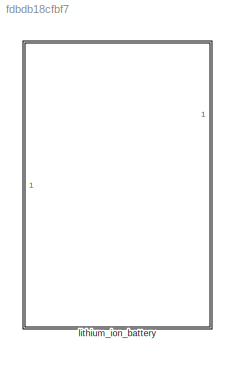
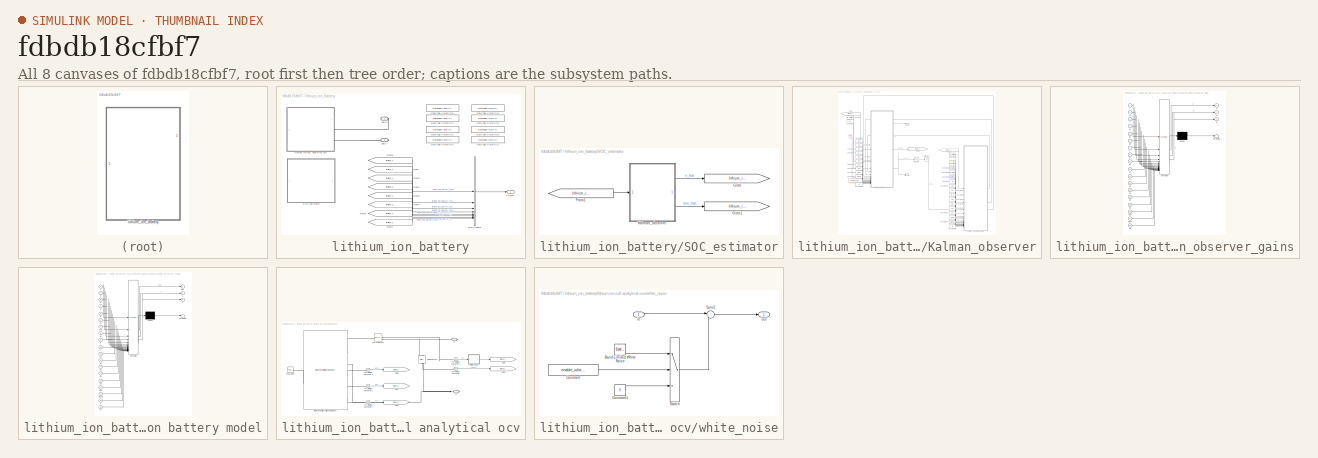
[diagram: thumbnail index - all 8 canvases of the model, root first then tree order]
MODEL slx_fdbdb18cfbf7
KIND library
CONFIG SolverName = VariableStepAuto
BLOCK [SubSystem] lithium_ion_battery
BLOCK [BusCreator] lithium_ion_battery/Bus Creator
  DisplayOption = bar
  InheritFromInputs = on
  Inputs = 8
BLOCK [From] lithium_ion_battery/From
  GotoTag = lithium_ion_battery_state_hat
  TagVisibility = scoped
BLOCK [From] lithium_ion_battery/From1
  GotoTag = lithium_ion_battery_SOC
  TagVisibility = scoped
BLOCK [From] lithium_ion_battery/From2
  GotoTag = lithium_ion_battery_soc_hat
  TagVisibility = scoped
BLOCK [From] lithium_ion_battery/From3
  GotoTag = lithium_ion_battery_icell
  TagVisibility = global
BLOCK [From] lithium_ion_battery/From4
  GotoTag = lithium_ion_battery_h
  TagVisibility = global
BLOCK [From] lithium_ion_battery/From5
  GotoTag = lithium_ion_battery_im
  TagVisibility = global
BLOCK [From] lithium_ion_battery/From6
  GotoTag = lithium_ion_battery_vout
  TagVisibility = global
BLOCK [From] lithium_ion_battery/From7
  GotoTag = lithium_ion_battery_vout_hat
  TagVisibility = scoped
BLOCK [GotoTagVisibility] lithium_ion_battery/Goto Tag Visibility1
  GotoTag = lithium_ion_battery_state_hat
BLOCK [GotoTagVisibility] lithium_ion_battery/Goto Tag Visibility2
  GotoTag = lithium_ion_battery_soc_hat
BLOCK [GotoTagVisibility] lithium_ion_battery/Goto Tag Visibility3
  GotoTag = lithium_ion_battery_SOC
BLOCK [GotoTagVisibility] lithium_ion_battery/Goto Tag Visibility4
  GotoTag = lithium_ion_battery_icell
BLOCK [GotoTagVisibility] lithium_ion_battery/Goto Tag Visibility5
  GotoTag = lithium_ion_battery_h
BLOCK [GotoTagVisibility] lithium_ion_battery/Goto Tag Visibility6
  GotoTag = lithium_ion_battery_im
BLOCK [GotoTagVisibility] lithium_ion_battery/Goto Tag Visibility7
  GotoTag = lithium_ion_battery_vout_hat
BLOCK [GotoTagVisibility] lithium_ion_battery/Goto Tag Visibility8
  GotoTag = lithium_ion_battery_vout
BLOCK [SubSystem] lithium_ion_battery/SOC_estimator
BLOCK [From] lithium_ion_battery/SOC_estimator/From1
  GotoTag = lithium_ion_battery_vout
  TagVisibility = global
BLOCK [Goto] lithium_ion_battery/SOC_estimator/Goto
  GotoTag = lithium_ion_battery_state_hat
  TagVisibility = scoped
BLOCK [Goto] lithium_ion_battery/SOC_estimator/Goto1
  GotoTag = lithium_ion_battery_soc_hat
  TagVisibility = scoped
BLOCK [SubSystem] lithium_ion_battery/SOC_estimator/Kalman_observer
BLOCK [Constant] lithium_ion_battery/SOC_estimator/Kalman_observer/Constant
  Value = ts_battery
BLOCK [Constant] lithium_ion_battery/SOC_estimator/Kalman_observer/Constant1
  Value = Q
BLOCK [Constant] lithium_ion_battery/SOC_estimator/Kalman_observer/Constant10
  Value = C1
BLOCK [Constant] lithium_ion_battery/SOC_estimator/Kalman_observer/Constant11
  Value = E_1
BLOCK [Constant] lithium_ion_battery/SOC_estimator/Kalman_observer/Constant12
  Value = E0
BLOCK [Constant] lithium_ion_battery/SOC_estimator/Kalman_observer/Constant13
  Value = E1
BLOCK [Constant] lithium_ion_battery/SOC_estimator/Kalman_observer/Constant14
  Value = E2
BLOCK [Constant] lithium_ion_battery/SOC_estimator/Kalman_observer/Constant15
  Value = E3
BLOCK [Constant] lithium_ion_battery/SOC_estimator/Kalman_observer/Constant16
  Value = Elog
BLOCK [Constant] lithium_ion_battery/SOC_estimator/Kalman_observer/Constant17
  Value = alpha
BLOCK [Constant] lithium_ion_battery/SOC_estimator/Kalman_observer/Constant18
  Value = number_of_cells
BLOCK [Constant] lithium_ion_battery/SOC_estimator/Kalman_observer/Constant19
  Value = M
BLOCK [Constant] lithium_ion_battery/SOC_estimator/Kalman_observer/Constant2
  Value = q1Kalman
BLOCK [Constant] lithium_ion_battery/SOC_estimator/Kalman_observer/Constant20
  Value = C1
BLOCK [Constant] lithium_ion_battery/SOC_estimator/Kalman_observer/Constant21
  Value = E_1
BLOCK [Constant] lithium_ion_battery/SOC_estimator/Kalman_observer/Constant22
  Value = E0
BLOCK [Constant] lithium_ion_battery/SOC_estimator/Kalman_observer/Constant23
  Value = E1
BLOCK [Constant] lithium_ion_battery/SOC_estimator/Kalman_observer/Constant24
  Value = E2
BLOCK [Constant] lithium_ion_battery/SOC_estimator/Kalman_observer/Constant25
  Value = E3
BLOCK [Constant] lithium_ion_battery/SOC_estimator/Kalman_observer/Constant26
  Value = Elog
BLOCK [Constant] lithium_ion_battery/SOC_estimator/Kalman_observer/Constant27
  Value = alpha
BLOCK [Constant] lithium_ion_battery/SOC_estimator/Kalman_observer/Constant29
  Value = M
BLOCK [Constant] lithium_ion_battery/SOC_estimator/Kalman_observer/Constant3
  Value = q2Kalman
BLOCK [Constant] lithium_ion_battery/SOC_estimator/Kalman_observer/Constant30
  Value = R1
BLOCK [Constant] lithium_ion_battery/SOC_estimator/Kalman_observer/Constant4
  Value = q3Kalman
BLOCK [Constant] lithium_ion_battery/SOC_estimator/Kalman_observer/Constant5
  Value = rKalman
BLOCK [Constant] lithium_ion_battery/SOC_estimator/Kalman_observer/Constant6
  Value = ts_battery
BLOCK [Constant] lithium_ion_battery/SOC_estimator/Kalman_observer/Constant7
  Value = Q
BLOCK [Constant] lithium_ion_battery/SOC_estimator/Kalman_observer/Constant8
  Value = R0
BLOCK [Constant] lithium_ion_battery/SOC_estimator/Kalman_observer/Constant9
  Value = R1
BLOCK [From] lithium_ion_battery/SOC_estimator/Kalman_observer/From
  GotoTag = lithium_ion_battery_im
  TagVisibility = global
BLOCK [From] lithium_ion_battery/SOC_estimator/Kalman_observer/From1
  GotoTag = lithium_ion_battery_im
  TagVisibility = global
BLOCK [Goto] lithium_ion_battery/SOC_estimator/Kalman_observer/Goto1
  GotoTag = lithium_ion_battery_vout_hat
  TagVisibility = scoped
BLOCK [Outport] lithium_ion_battery/SOC_estimator/Kalman_observer/SOC
  Port = 2
BLOCK [Selector] lithium_ion_battery/SOC_estimator/Kalman_observer/Selector
  IndexOptions = Index vector (dialog)
  Indices = 1
  InputPortWidth = 3
  OutputSizes = 1
BLOCK [UnitDelay] lithium_ion_battery/SOC_estimator/Kalman_observer/Unit Delay4
  SampleTime = ts_battery
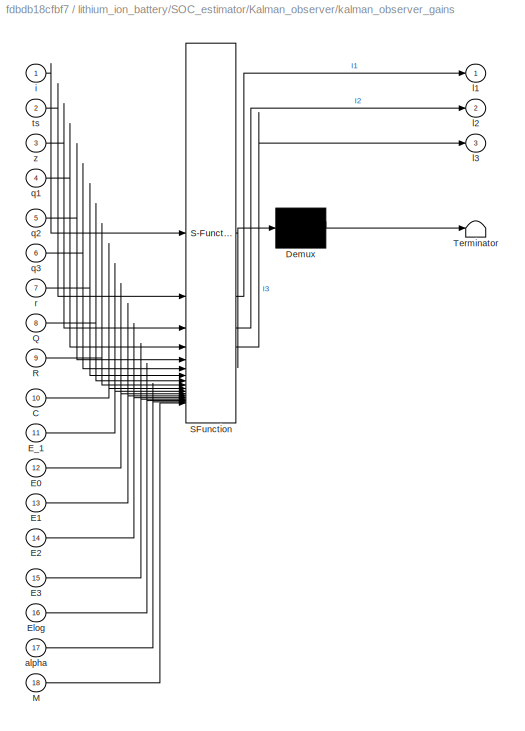
BLOCK [SubSystem] lithium_ion_battery/SOC_estimator/Kalman_observer/kalman_observer_gains
  ErrorFcn = Stateflow.Translate.translate
  PermitHierarchicalResolution = ExplicitOnly
  SFBlockType = MATLAB Function
  SystemSampleTime = ts_battery
  TreatAsAtomicUnit = on
  TreatAsGroupedWhenPropagatingVariantConditions = off
BLOCK [Demux] lithium_ion_battery/SOC_estimator/Kalman_observer/kalman_observer_gains/ Demux 
  Outputs = 1
BLOCK [S-Function] lithium_ion_battery/SOC_estimator/Kalman_observer/kalman_observer_gains/ SFunction 
  EnableBusSupport = off
  FunctionName = sf_sfun
  PortCounts = [18 4]
  SFcnIsStateOwnerBlock = off
  SFunctionDeploymentMode = off
  Tag = Stateflow S-Function 3
BLOCK [Terminator] lithium_ion_battery/SOC_estimator/Kalman_observer/kalman_observer_gains/ Terminator 
BLOCK [Inport] lithium_ion_battery/SOC_estimator/Kalman_observer/kalman_observer_gains/C
  Port = 10
BLOCK [Inport] lithium_ion_battery/SOC_estimator/Kalman_observer/kalman_observer_gains/E0
  Port = 12
BLOCK [Inport] lithium_ion_battery/SOC_estimator/Kalman_observer/kalman_observer_gains/E1
  Port = 13
BLOCK [Inport] lithium_ion_battery/SOC_estimator/Kalman_observer/kalman_observer_gains/E2
  Port = 14
BLOCK [Inport] lithium_ion_battery/SOC_estimator/Kalman_observer/kalman_observer_gains/E3
  Port = 15
BLOCK [Inport] lithium_ion_battery/SOC_estimator/Kalman_observer/kalman_observer_gains/E_1
  Port = 11
BLOCK [Inport] lithium_ion_battery/SOC_estimator/Kalman_observer/kalman_observer_gains/Elog
  Port = 16
BLOCK [Inport] lithium_ion_battery/SOC_estimator/Kalman_observer/kalman_observer_gains/M
  Port = 18
BLOCK [Inport] lithium_ion_battery/SOC_estimator/Kalman_observer/kalman_observer_gains/Q
  Port = 8
BLOCK [Inport] lithium_ion_battery/SOC_estimator/Kalman_observer/kalman_observer_gains/R
  Port = 9
BLOCK [Inport] lithium_ion_battery/SOC_estimator/Kalman_observer/kalman_observer_gains/alpha
  Port = 17
BLOCK [Inport] lithium_ion_battery/SOC_estimator/Kalman_observer/kalman_observer_gains/i
BLOCK [Outport] lithium_ion_battery/SOC_estimator/Kalman_observer/kalman_observer_gains/l1
  VectorParamsAs1DForOutWhenUnconnected = off
BLOCK [Outport] lithium_ion_battery/SOC_estimator/Kalman_observer/kalman_observer_gains/l2
  Port = 2
BLOCK [Outport] lithium_ion_battery/SOC_estimator/Kalman_observer/kalman_observer_gains/l3
  Port = 3
BLOCK [Inport] lithium_ion_battery/SOC_estimator/Kalman_observer/kalman_observer_gains/q1
  Port = 4
BLOCK [Inport] lithium_ion_battery/SOC_estimator/Kalman_observer/kalman_observer_gains/q2
  Port = 5
BLOCK [Inport] lithium_ion_battery/SOC_estimator/Kalman_observer/kalman_observer_gains/q3
  Port = 6
BLOCK [Inport] lithium_ion_battery/SOC_estimator/Kalman_observer/kalman_observer_gains/r
  Port = 7
BLOCK [Inport] lithium_ion_battery/SOC_estimator/Kalman_observer/kalman_observer_gains/ts
  Port = 2
BLOCK [Inport] lithium_ion_battery/SOC_estimator/Kalman_observer/kalman_observer_gains/z
  Port = 3
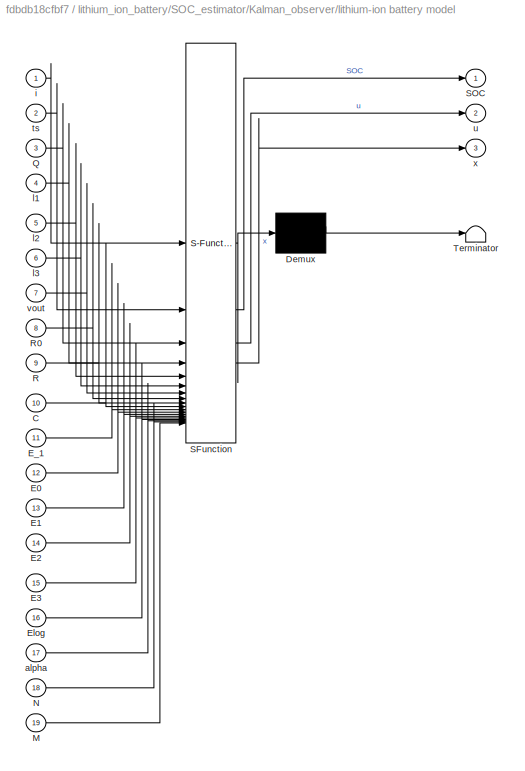
BLOCK [SubSystem] lithium_ion_battery/SOC_estimator/Kalman_observer/lithium-ion battery model
  ErrorFcn = Stateflow.Translate.translate
  PermitHierarchicalResolution = ExplicitOnly
  SFBlockType = MATLAB Function
  SystemSampleTime = ts_battery
  TreatAsAtomicUnit = on
  TreatAsGroupedWhenPropagatingVariantConditions = off
BLOCK [Demux] lithium_ion_battery/SOC_estimator/Kalman_observer/lithium-ion battery model/ Demux 
  Outputs = 1
BLOCK [S-Function] lithium_ion_battery/SOC_estimator/Kalman_observer/lithium-ion battery model/ SFunction 
  EnableBusSupport = off
  FunctionName = sf_sfun
  PortCounts = [19 4]
  SFcnIsStateOwnerBlock = off
  SFunctionDeploymentMode = off
  Tag = Stateflow S-Function 5
BLOCK [Terminator] lithium_ion_battery/SOC_estimator/Kalman_observer/lithium-ion battery model/ Terminator 
BLOCK [Inport] lithium_ion_battery/SOC_estimator/Kalman_observer/lithium-ion battery model/C
  Port = 10
BLOCK [Inport] lithium_ion_battery/SOC_estimator/Kalman_observer/lithium-ion battery model/E0
  Port = 12
BLOCK [Inport] lithium_ion_battery/SOC_estimator/Kalman_observer/lithium-ion battery model/E1
  Port = 13
BLOCK [Inport] lithium_ion_battery/SOC_estimator/Kalman_observer/lithium-ion battery model/E2
  Port = 14
BLOCK [Inport] lithium_ion_battery/SOC_estimator/Kalman_observer/lithium-ion battery model/E3
  Port = 15
BLOCK [Inport] lithium_ion_battery/SOC_estimator/Kalman_observer/lithium-ion battery model/E_1
  Port = 11
BLOCK [Inport] lithium_ion_battery/SOC_estimator/Kalman_observer/lithium-ion battery model/Elog
  Port = 16
BLOCK [Inport] lithium_ion_battery/SOC_estimator/Kalman_observer/lithium-ion battery model/M
  Port = 19
BLOCK [Inport] lithium_ion_battery/SOC_estimator/Kalman_observer/lithium-ion battery model/N
  Port = 18
BLOCK [Inport] lithium_ion_battery/SOC_estimator/Kalman_observer/lithium-ion battery model/Q
  Port = 3
BLOCK [Inport] lithium_ion_battery/SOC_estimator/Kalman_observer/lithium-ion battery model/R
  Port = 9
BLOCK [Inport] lithium_ion_battery/SOC_estimator/Kalman_observer/lithium-ion battery model/R0
  Port = 8
BLOCK [Outport] lithium_ion_battery/SOC_estimator/Kalman_observer/lithium-ion battery model/SOC
  VectorParamsAs1DForOutWhenUnconnected = off
BLOCK [Inport] lithium_ion_battery/SOC_estimator/Kalman_observer/lithium-ion battery model/alpha
  Port = 17
BLOCK [Inport] lithium_ion_battery/SOC_estimator/Kalman_observer/lithium-ion battery model/i
BLOCK [Inport] lithium_ion_battery/SOC_estimator/Kalman_observer/lithium-ion battery model/l1
  Port = 4
BLOCK [Inport] lithium_ion_battery/SOC_estimator/Kalman_observer/lithium-ion battery model/l2
  Port = 5
BLOCK [Inport] lithium_ion_battery/SOC_estimator/Kalman_observer/lithium-ion battery model/l3
  Port = 6
BLOCK [Inport] lithium_ion_battery/SOC_estimator/Kalman_observer/lithium-ion battery model/ts
  Port = 2
BLOCK [Outport] lithium_ion_battery/SOC_estimator/Kalman_observer/lithium-ion battery model/u
  Port = 2
BLOCK [Inport] lithium_ion_battery/SOC_estimator/Kalman_observer/lithium-ion battery model/vout
  Port = 7
BLOCK [Outport] lithium_ion_battery/SOC_estimator/Kalman_observer/lithium-ion battery model/x
  Port = 3
BLOCK [Inport] lithium_ion_battery/SOC_estimator/Kalman_observer/vout(k)
BLOCK [Outport] lithium_ion_battery/SOC_estimator/Kalman_observer/x(k+1|k)
BLOCK [Outport] lithium_ion_battery/lib_outs
BLOCK [SubSystem] lithium_ion_battery/lithium ion cell analytical ocv
BLOCK [Reference] lithium_ion_battery/lithium ion cell analytical ocv/Current Sensor  REF=fl_lib/Electrical/Electrical Sensors/Current Sensor
  SourceBlock = fl_lib/Electrical/Electrical Sensors/Current Sensor
  SourceType = Current Sensor
BLOCK [Goto] lithium_ion_battery/lithium ion cell analytical ocv/Goto
  GotoTag = lithium_ion_battery_im
  TagVisibility = scoped
BLOCK [Goto] lithium_ion_battery/lithium ion cell analytical ocv/Goto1
  GotoTag = lithium_ion_battery_vout
  TagVisibility = scoped
BLOCK [Goto] lithium_ion_battery/lithium ion cell analytical ocv/Goto2
  GotoTag = lithium_ion_battery_icell
  TagVisibility = scoped
BLOCK [Goto] lithium_ion_battery/lithium ion cell analytical ocv/Goto3
  GotoTag = lithium_ion_battery_SOC
  TagVisibility = scoped
BLOCK [Goto] lithium_ion_battery/lithium ion cell analytical ocv/Goto4
  GotoTag = lithium_ion_battery_h
  TagVisibility = scoped
BLOCK [Reference] lithium_ion_battery/lithium ion cell analytical ocv/PS Constant  REF=fl_lib/Physical Signals/Sources/PS Constant
  SourceBlock = fl_lib/Physical Signals/Sources/PS Constant
  SourceType = PS Constant
BLOCK [Reference] lithium_ion_battery/lithium ion cell analytical ocv/PS-Simulink Converter  REF=nesl_utility/PS-Simulink
Converter
  SourceBlock = nesl_utility/PS-Simulink\nConverter
  SourceType = PS-Simulink\nConverter
BLOCK [Reference] lithium_ion_battery/lithium ion cell analytical ocv/PS-Simulink Converter1  REF=nesl_utility/PS-Simulink
Converter
  SourceBlock = nesl_utility/PS-Simulink\nConverter
  SourceType = PS-Simulink\nConverter
BLOCK [Reference] lithium_ion_battery/lithium ion cell analytical ocv/PS-Simulink Converter2  REF=nesl_utility/PS-Simulink
Converter
  SourceBlock = nesl_utility/PS-Simulink\nConverter
  SourceType = PS-Simulink\nConverter
BLOCK [Reference] lithium_ion_battery/lithium ion cell analytical ocv/PS-Simulink Converter3  REF=nesl_utility/PS-Simulink
Converter
  SourceBlock = nesl_utility/PS-Simulink\nConverter
  SourceType = PS-Simulink\nConverter
BLOCK [Reference] lithium_ion_battery/lithium ion cell analytical ocv/PS-Simulink Converter4  REF=nesl_utility/PS-Simulink
Converter
  SourceBlock = nesl_utility/PS-Simulink\nConverter
  SourceType = PS-Simulink\nConverter
BLOCK [PMIOPort] lithium_ion_battery/lithium ion cell analytical ocv/U+
  Side = Right
BLOCK [PMIOPort] lithium_ion_battery/lithium ion cell analytical ocv/U-
  Port = 2
  Side = Right
BLOCK [Reference] lithium_ion_battery/lithium ion cell analytical ocv/Voltage Sensor  REF=fl_lib/Electrical/Electrical Sensors/Voltage Sensor
  NameLocation = right
  SourceBlock = fl_lib/Electrical/Electrical Sensors/Voltage Sensor
  SourceType = Voltage Sensor
BLOCK [Reference] lithium_ion_battery/lithium ion cell analytical ocv/lithium-ion battery with analytical OCV  REF=lithium_ion_cell_lib/lithium-ion Cell
with analytical OCV
  SourceBlock = lithium_ion_cell_lib/lithium-ion Cell\nwith analytical OCV
  SourceType = lithium-ion Cell\nwith analytical OCV
BLOCK [SubSystem] lithium_ion_battery/lithium ion cell analytical ocv/white_noise
  NameLocation = top
BLOCK [Reference] lithium_ion_battery/lithium ion cell analytical ocv/white_noise/Band-Limited White Noise  REF=simulink/Sources/Band-Limited
White Noise
  SourceBlock = simulink/Sources/Band-Limited\nWhite Noise
  SourceType = Band-Limited White Noise.
BLOCK [Constant] lithium_ion_battery/lithium ion cell analytical ocv/white_noise/Constant
  Value = enable_white_noise_m
BLOCK [Constant] lithium_ion_battery/lithium ion cell analytical ocv/white_noise/Constant1
  Value = 0
BLOCK [Sum] lithium_ion_battery/lithium ion cell analytical ocv/white_noise/Sum2
  Inputs = |++
BLOCK [Switch] lithium_ion_battery/lithium ion cell analytical ocv/white_noise/Switch
  Criteria = u2 > Threshold
  InputSameDT = off
  SaturateOnIntegerOverflow = off
  Threshold = 0.5
BLOCK [Inport] lithium_ion_battery/lithium ion cell analytical ocv/white_noise/in
BLOCK [Outport] lithium_ion_battery/lithium ion cell analytical ocv/white_noise/out
BLOCK [PMIOPort] lithium_ion_battery/udc(+)
  Side = Right
BLOCK [PMIOPort] lithium_ion_battery/udc(-)
  Port = 2
  Side = Right
LINE lithium_ion_battery/Bus Creator:1 -> lithium_ion_battery/lib_outs:1
LINE lithium_ion_battery/From1:1 -> lithium_ion_battery/Bus Creator:4
LINE lithium_ion_battery/From2:1 -> lithium_ion_battery/Bus Creator:3
LINE lithium_ion_battery/From3:1 -> lithium_ion_battery/Bus Creator:5
LINE lithium_ion_battery/From4:1 -> lithium_ion_battery/Bus Creator:6
LINE lithium_ion_battery/From5:1 -> lithium_ion_battery/Bus Creator:7
LINE lithium_ion_battery/From6:1 -> lithium_ion_battery/Bus Creator:1
LINE lithium_ion_battery/From7:1 -> lithium_ion_battery/Bus Creator:8
LINE lithium_ion_battery/From:1 -> lithium_ion_battery/Bus Creator:2
LINE lithium_ion_battery/SOC_estimator/From1:1 -> lithium_ion_battery/SOC_estimator/Kalman_observer:1
LINE lithium_ion_battery/SOC_estimator/Kalman_observer/Constant10:1 -> lithium_ion_battery/SOC_estimator/Kalman_observer/lithium-ion battery model:10
LINE lithium_ion_battery/SOC_estimator/Kalman_observer/Constant11:1 -> lithium_ion_battery/SOC_estimator/Kalman_observer/lithium-ion battery model:11
LINE lithium_ion_battery/SOC_estimator/Kalman_observer/Constant12:1 -> lithium_ion_battery/SOC_estimator/Kalman_observer/lithium-ion battery model:12
LINE lithium_ion_battery/SOC_estimator/Kalman_observer/Constant13:1 -> lithium_ion_battery/SOC_estimator/Kalman_observer/lithium-ion battery model:13
LINE lithium_ion_battery/SOC_estimator/Kalman_observer/Constant14:1 -> lithium_ion_battery/SOC_estimator/Kalman_observer/lithium-ion battery model:14
LINE lithium_ion_battery/SOC_estimator/Kalman_observer/Constant15:1 -> lithium_ion_battery/SOC_estimator/Kalman_observer/lithium-ion battery model:15
LINE lithium_ion_battery/SOC_estimator/Kalman_observer/Constant16:1 -> lithium_ion_battery/SOC_estimator/Kalman_observer/lithium-ion battery model:16
LINE lithium_ion_battery/SOC_estimator/Kalman_observer/Constant17:1 -> lithium_ion_battery/SOC_estimator/Kalman_observer/lithium-ion battery model:17
LINE lithium_ion_battery/SOC_estimator/Kalman_observer/Constant18:1 -> lithium_ion_battery/SOC_estimator/Kalman_observer/lithium-ion battery model:18
LINE lithium_ion_battery/SOC_estimator/Kalman_observer/Constant19:1 -> lithium_ion_battery/SOC_estimator/Kalman_observer/lithium-ion battery model:19
LINE lithium_ion_battery/SOC_estimator/Kalman_observer/Constant1:1 -> lithium_ion_battery/SOC_estimator/Kalman_observer/lithium-ion battery model:3
LINE lithium_ion_battery/SOC_estimator/Kalman_observer/Constant20:1 -> lithium_ion_battery/SOC_estimator/Kalman_observer/kalman_observer_gains:10
LINE lithium_ion_battery/SOC_estimator/Kalman_observer/Constant21:1 -> lithium_ion_battery/SOC_estimator/Kalman_observer/kalman_observer_gains:11
LINE lithium_ion_battery/SOC_estimator/Kalman_observer/Constant22:1 -> lithium_ion_battery/SOC_estimator/Kalman_observer/kalman_observer_gains:12
LINE lithium_ion_battery/SOC_estimator/Kalman_observer/Constant23:1 -> lithium_ion_battery/SOC_estimator/Kalman_observer/kalman_observer_gains:13
LINE lithium_ion_battery/SOC_estimator/Kalman_observer/Constant24:1 -> lithium_ion_battery/SOC_estimator/Kalman_observer/kalman_observer_gains:14
LINE lithium_ion_battery/SOC_estimator/Kalman_observer/Constant25:1 -> lithium_ion_battery/SOC_estimator/Kalman_observer/kalman_observer_gains:15
LINE lithium_ion_battery/SOC_estimator/Kalman_observer/Constant26:1 -> lithium_ion_battery/SOC_estimator/Kalman_observer/kalman_observer_gains:16
LINE lithium_ion_battery/SOC_estimator/Kalman_observer/Constant27:1 -> lithium_ion_battery/SOC_estimator/Kalman_observer/kalman_observer_gains:17
LINE lithium_ion_battery/SOC_estimator/Kalman_observer/Constant29:1 -> lithium_ion_battery/SOC_estimator/Kalman_observer/kalman_observer_gains:18
LINE lithium_ion_battery/SOC_estimator/Kalman_observer/Constant2:1 -> lithium_ion_battery/SOC_estimator/Kalman_observer/kalman_observer_gains:4
LINE lithium_ion_battery/SOC_estimator/Kalman_observer/Constant30:1 -> lithium_ion_battery/SOC_estimator/Kalman_observer/kalman_observer_gains:9
LINE lithium_ion_battery/SOC_estimator/Kalman_observer/Constant3:1 -> lithium_ion_battery/SOC_estimator/Kalman_observer/kalman_observer_gains:5
LINE lithium_ion_battery/SOC_estimator/Kalman_observer/Constant4:1 -> lithium_ion_battery/SOC_estimator/Kalman_observer/kalman_observer_gains:6
LINE lithium_ion_battery/SOC_estimator/Kalman_observer/Constant5:1 -> lithium_ion_battery/SOC_estimator/Kalman_observer/kalman_observer_gains:7
LINE lithium_ion_battery/SOC_estimator/Kalman_observer/Constant6:1 -> lithium_ion_battery/SOC_estimator/Kalman_observer/kalman_observer_gains:2
LINE lithium_ion_battery/SOC_estimator/Kalman_observer/Constant7:1 -> lithium_ion_battery/SOC_estimator/Kalman_observer/kalman_observer_gains:8
LINE lithium_ion_battery/SOC_estimator/Kalman_observer/Constant8:1 -> lithium_ion_battery/SOC_estimator/Kalman_observer/lithium-ion battery model:8
LINE lithium_ion_battery/SOC_estimator/Kalman_observer/Constant9:1 -> lithium_ion_battery/SOC_estimator/Kalman_observer/lithium-ion battery model:9
LINE lithium_ion_battery/SOC_estimator/Kalman_observer/Constant:1 -> lithium_ion_battery/SOC_estimator/Kalman_observer/lithium-ion battery model:2
LINE lithium_ion_battery/SOC_estimator/Kalman_observer/From1:1 -> lithium_ion_battery/SOC_estimator/Kalman_observer/kalman_observer_gains:1
LINE lithium_ion_battery/SOC_estimator/Kalman_observer/From:1 -> lithium_ion_battery/SOC_estimator/Kalman_observer/lithium-ion battery model:1
LINE lithium_ion_battery/SOC_estimator/Kalman_observer/Selector:1 -> lithium_ion_battery/SOC_estimator/Kalman_observer/Unit Delay4:1
LINE lithium_ion_battery/SOC_estimator/Kalman_observer/Unit Delay4:1 -> lithium_ion_battery/SOC_estimator/Kalman_observer/kalman_observer_gains:3
LINE lithium_ion_battery/SOC_estimator/Kalman_observer/kalman_observer_gains:1 -> lithium_ion_battery/SOC_estimator/Kalman_observer/lithium-ion battery model:4
LINE lithium_ion_battery/SOC_estimator/Kalman_observer/kalman_observer_gains:2 -> lithium_ion_battery/SOC_estimator/Kalman_observer/lithium-ion battery model:5
LINE lithium_ion_battery/SOC_estimator/Kalman_observer/kalman_observer_gains:3 -> lithium_ion_battery/SOC_estimator/Kalman_observer/lithium-ion battery model:6
LINE lithium_ion_battery/SOC_estimator/Kalman_observer/lithium-ion battery model:1 -> lithium_ion_battery/SOC_estimator/Kalman_observer/SOC:1
LINE lithium_ion_battery/SOC_estimator/Kalman_observer/lithium-ion battery model:2 -> lithium_ion_battery/SOC_estimator/Kalman_observer/Goto1:1
NET lithium_ion_battery/SOC_estimator/Kalman_observer/lithium-ion battery model:3 -> lithium_ion_battery/SOC_estimator/Kalman_observer/Selector:1, lithium_ion_battery/SOC_estimator/Kalman_observer/x(k+1|k):1
LINE lithium_ion_battery/SOC_estimator/Kalman_observer/vout(k):1 -> lithium_ion_battery/SOC_estimator/Kalman_observer/lithium-ion battery model:7
LINE lithium_ion_battery/SOC_estimator/Kalman_observer:1 -> lithium_ion_battery/SOC_estimator/Goto:1
LINE lithium_ion_battery/SOC_estimator/Kalman_observer:2 -> lithium_ion_battery/SOC_estimator/Goto1:1
LINE lithium_ion_battery/lithium ion cell analytical ocv/PS-Simulink Converter1:1 -> lithium_ion_battery/lithium ion cell analytical ocv/white_noise:1
LINE lithium_ion_battery/lithium ion cell analytical ocv/PS-Simulink Converter2:1 -> lithium_ion_battery/lithium ion cell analytical ocv/Goto2:1
LINE lithium_ion_battery/lithium ion cell analytical ocv/PS-Simulink Converter3:1 -> lithium_ion_battery/lithium ion cell analytical ocv/Goto3:1
LINE lithium_ion_battery/lithium ion cell analytical ocv/PS-Simulink Converter4:1 -> lithium_ion_battery/lithium ion cell analytical ocv/Goto4:1
LINE lithium_ion_battery/lithium ion cell analytical ocv/PS-Simulink Converter:1 -> lithium_ion_battery/lithium ion cell analytical ocv/Goto1:1
LINE lithium_ion_battery/lithium ion cell analytical ocv/white_noise/Band-Limited White Noise:1 -> lithium_ion_battery/lithium ion cell analytical ocv/white_noise/Switch:1
LINE lithium_ion_battery/lithium ion cell analytical ocv/white_noise/Constant1:1 -> lithium_ion_battery/lithium ion cell analytical ocv/white_noise/Switch:3
LINE lithium_ion_battery/lithium ion cell analytical ocv/white_noise/Constant:1 -> lithium_ion_battery/lithium ion cell analytical ocv/white_noise/Switch:2
LINE lithium_ion_battery/lithium ion cell analytical ocv/white_noise/Sum2:1 -> lithium_ion_battery/lithium ion cell analytical ocv/white_noise/out:1
LINE lithium_ion_battery/lithium ion cell analytical ocv/white_noise/Switch:1 -> lithium_ion_battery/lithium ion cell analytical ocv/white_noise/Sum2:2
LINE lithium_ion_battery/lithium ion cell analytical ocv/white_noise/in:1 -> lithium_ion_battery/lithium ion cell analytical ocv/white_noise/Sum2:1
LINE lithium_ion_battery/lithium ion cell analytical ocv/white_noise:1 -> lithium_ion_battery/lithium ion cell analytical ocv/Goto:1
PLINE lithium_ion_battery/lithium ion cell analytical ocv/Current Sensor:LConn1 -- lithium_ion_battery/lithium ion cell analytical ocv/lithium-ion battery with analytical OCV:RConn1
PLINE lithium_ion_battery/lithium ion cell analytical ocv/Current Sensor:RConn1 -- lithium_ion_battery/lithium ion cell analytical ocv/PS-Simulink Converter1:LConn1
PNET net1: lithium_ion_battery/lithium ion cell analytical ocv/Current Sensor:RConn2 -- lithium_ion_battery/lithium ion cell analytical ocv/U+:RConn1 -- lithium_ion_battery/lithium ion cell analytical ocv/Voltage Sensor:LConn1
PLINE lithium_ion_battery/lithium ion cell analytical ocv/PS Constant:RConn1 -- lithium_ion_battery/lithium ion cell analytical ocv/lithium-ion battery with analytical OCV:LConn1
PLINE lithium_ion_battery/lithium ion cell analytical ocv/PS-Simulink Converter2:LConn1 -- lithium_ion_battery/lithium ion cell analytical ocv/lithium-ion battery with analytical OCV:RConn4
PLINE lithium_ion_battery/lithium ion cell analytical ocv/PS-Simulink Converter3:LConn1 -- lithium_ion_battery/lithium ion cell analytical ocv/lithium-ion battery with analytical OCV:RConn3
PLINE lithium_ion_battery/lithium ion cell analytical ocv/PS-Simulink Converter4:LConn1 -- lithium_ion_battery/lithium ion cell analytical ocv/lithium-ion battery with analytical OCV:RConn5
PLINE lithium_ion_battery/lithium ion cell analytical ocv/PS-Simulink Converter:LConn1 -- lithium_ion_battery/lithium ion cell analytical ocv/Voltage Sensor:RConn1
PNET net2: lithium_ion_battery/lithium ion cell analytical ocv/U-:RConn1 -- lithium_ion_battery/lithium ion cell analytical ocv/Voltage Sensor:RConn2 -- lithium_ion_battery/lithium ion cell analytical ocv/lithium-ion battery with analytical OCV:RConn2
PLINE lithium_ion_battery/lithium ion cell analytical ocv:RConn1 -- lithium_ion_battery/udc(+):RConn1
PLINE lithium_ion_battery/lithium ion cell analytical ocv:RConn2 -- lithium_ion_battery/udc(-):RConn1
note: NET lines group one-source signal fan-out (src -> all destinations, sorted); 1:1 wires keep LINE; PNET lines group multi-terminal physical nets as a canonical sorted terminal list (undirected conserving connections); 2-terminal nets keep the pairwise PLINE form
CHART lithium_ion_battery/SOC_estimator/Kalman_observer/kalman_observer_gains states=1 transitions=1
  STATE_LABEL 'eML_blk_kernel()'
  STATE_LABEL 'SCRIPT:\nfunction [l1,l2,l3] = EKF(i,ts,z,q1,q2,q3,r,Q, R, C, E_1, E0, E1, E2, E3, Elog, alpha, M)\n\n    persistent  p11 p12 p13 p21 p22 p23 p31 p32 p33\n\n    if isempty(p11)\n        p11 = q1;\n        p12 = 0;\n        p13 = 0;\n        p21 = 0;\n        p22 = q2;\n        p23 = 0;\n        p31 = 0;\n        p32 = 0;\n        p33 = q3;\n    end\n\n    a11 = 1;\n    a12 = 0;\n    a13 = 0;\n    a21 = 0;\n    a22 = e...<+2129ch>'
CHART lithium_ion_battery/SOC_estimator/Kalman_observer/lithium-ion battery
model states=1 transitions=1
  STATE_LABEL 'eML_blk_kernel()'
  STATE_LABEL 'SCRIPT:\nfunction [SOC, u, x] = lithium_ion_battery(i,ts,Q,l1,l2,l3,vout, R0, R,C, E_1, E0, E1, E2, E3, Elog, alpha, N, M)\n\n    persistent z_po ir_po h_po vout_hat\n\n    if isempty(z_po)\n        ir_po = 0;\n        h_po = 0;\n        z_po = 0.5;        \n    end      \n        \n        Q = Q * 3600; \n        z_pr = z_po - ts/Q*i ;\n    \n        ir_pr = exp(-ts/(R*C))*ir_po + (1-exp(-ts/(R*C)))*i;\n\n      ...<+466ch>'
CHART  states=0 transitions=0
CHART  states=0 transitions=0
